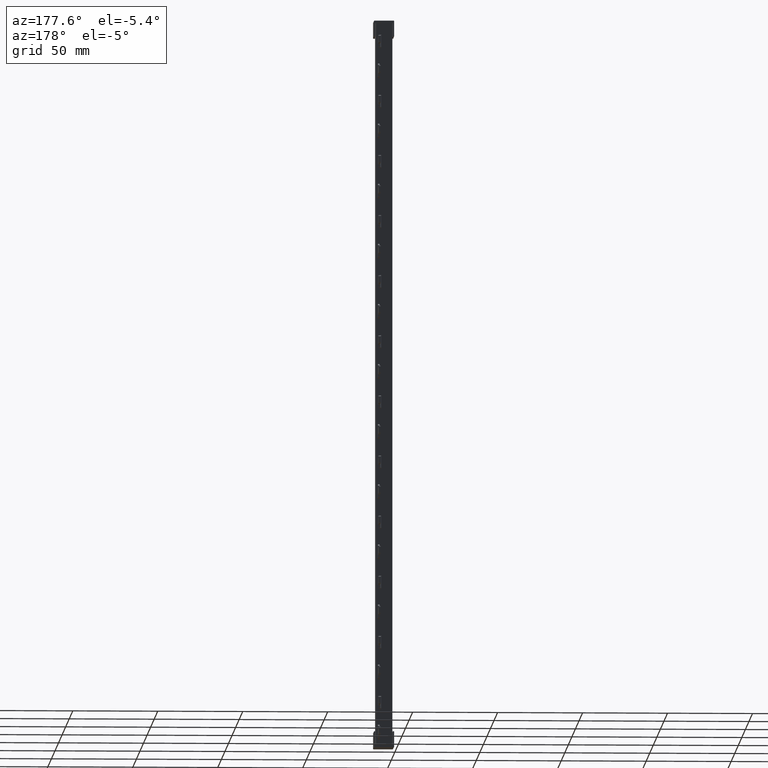
[diagram: clean part render]
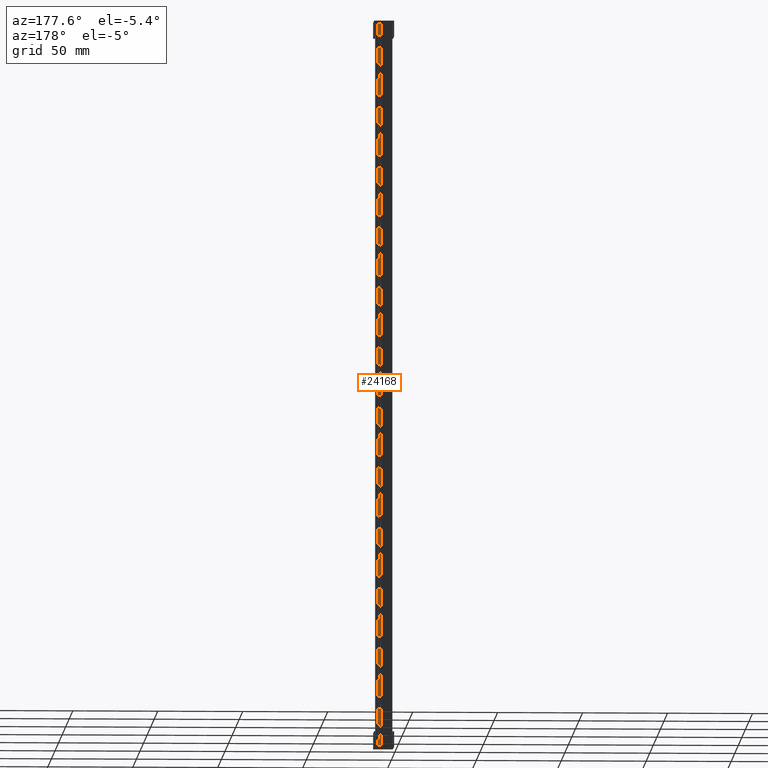
[diagram: same view with one face highlighted and labeled with its STEP entity id]
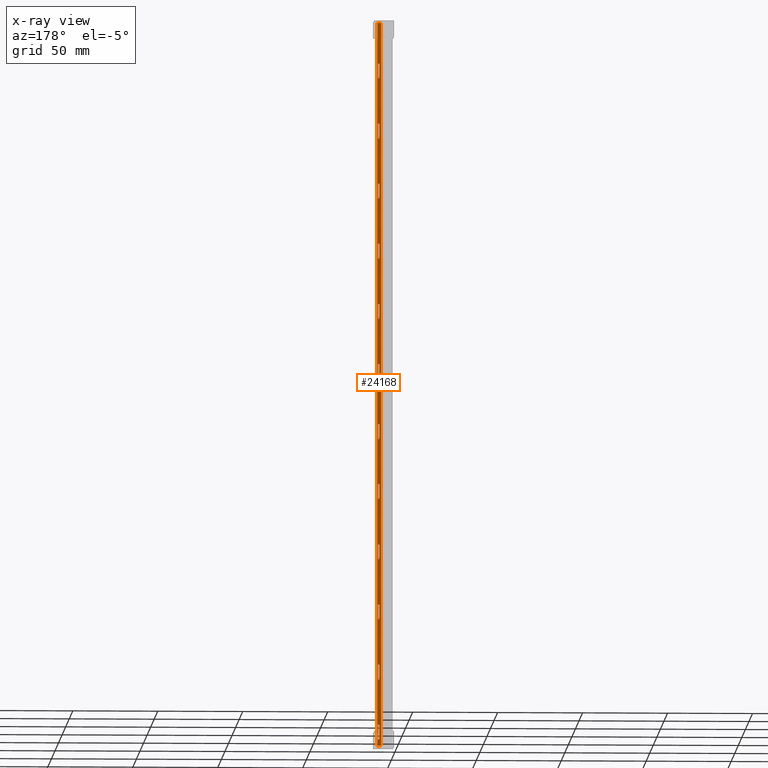
[diagram: x-ray of the same camera — body ghosted, the highlighted face saturated]
A machine part, auxiliary view. The second image highlights one B-rep face of the part: STEP entity #24168.
The next image is the same camera in x-ray: the body ghosted, the highlighted face saturated — about 0% of this face is hidden behind the body in this view.
In plain terms, the highlighted planar face has unit normal (0, 1, 0).
Its self-contained STEP definition (entity closure, byte-faithful):
#7 = VECTOR ( 'NONE', #18046, 1000.000000000000000 ) ;
#15 = VECTOR ( 'NONE', #35799, 1000.000000000000000 ) ;
#16 = VECTOR ( 'NONE', #17997, 1000.000000000000000 ) ;
#20 = VECTOR ( 'NONE', #35788, 1000.000000000000000 ) ;
#32 = VECTOR ( 'NONE', #18064, 1000.000000000000000 ) ;
#38 = VECTOR ( 'NONE', #35753, 1000.000000000000000 ) ;
#41 = VECTOR ( 'NONE', #35776, 1000.000000000000000 ) ;
#42 = VECTOR ( 'NONE', #35782, 1000.000000000000000 ) ;
#44 = VECTOR ( 'NONE', #35795, 1000.000000000000000 ) ;
#45 = VECTOR ( 'NONE', #34684, 1000.000000000000000 ) ;
#47 = VECTOR ( 'NONE', #18080, 1000.000000000000000 ) ;
#373 = VECTOR ( 'NONE', #20136, 1000.000000000000000 ) ;
#404 = VECTOR ( 'NONE', #20307, 1000.000000000000000 ) ;
#414 = VECTOR ( 'NONE', #20303, 1000.000000000000000 ) ;
#416 = VECTOR ( 'NONE', #20234, 1000.000000000000000 ) ;
#6630 = AXIS2_PLACEMENT_3D ( 'NONE', #26979, #26986, #26975 ) ;
#9124 = EDGE_CURVE ( 'NONE', #22872, #23098, #35265, .T. ) ;
#9128 = EDGE_CURVE ( 'NONE', #22906, #22902, #35264, .T. ) ;
#9133 = EDGE_CURVE ( 'NONE', #22938, #22883, #35297, .T. ) ;
#9138 = EDGE_CURVE ( 'NONE', #22874, #22902, #35306, .T. ) ;
#9144 = EDGE_CURVE ( 'NONE', #22938, #23098, #35366, .T. ) ;
#9148 = EDGE_CURVE ( 'NONE', #22925, #22948, #35364, .T. ) ;
#9150 = EDGE_CURVE ( 'NONE', #22883, #22872, #35371, .T. ) ;
#9152 = EDGE_CURVE ( 'NONE', #22927, #22866, #35353, .T. ) ;
#9162 = EDGE_CURVE ( 'NONE', #22927, #22925, #35489, .T. ) ;
#9166 = EDGE_CURVE ( 'NONE', #22874, #22954, #35487, .T. ) ;
#9173 = EDGE_CURVE ( 'NONE', #22948, #22866, #35537, .T. ) ;
#9178 = EDGE_CURVE ( 'NONE', #22900, #22952, #35514, .T. ) ;
#9190 = EDGE_CURVE ( 'NONE', #22870, #22932, #35558, .T. ) ;
#9198 = EDGE_CURVE ( 'NONE', #22887, #23085, #35630, .T. ) ;
#9200 = EDGE_CURVE ( 'NONE', #23085, #22915, #35640, .T. ) ;
#9201 = EDGE_CURVE ( 'NONE', #22954, #22906, #35647, .T. ) ;
#9204 = EDGE_CURVE ( 'NONE', #22854, #22887, #35634, .T. ) ;
#9205 = EDGE_CURVE ( 'NONE', #22894, #22940, #35645, .T. ) ;
#9207 = EDGE_CURVE ( 'NONE', #22930, #22914, #35615, .T. ) ;
#9208 = EDGE_CURVE ( 'NONE', #22889, #22956, #35646, .T. ) ;
#9209 = EDGE_CURVE ( 'NONE', #22894, #22885, #35650, .T. ) ;
#9212 = EDGE_CURVE ( 'NONE', #23050, #22889, #35665, .T. ) ;
#9215 = EDGE_CURVE ( 'NONE', #22934, #22870, #35669, .T. ) ;
#9216 = EDGE_CURVE ( 'NONE', #22876, #22921, #35683, .T. ) ;
#9217 = EDGE_CURVE ( 'NONE', #22879, #22885, #35700, .T. ) ;
#9221 = EDGE_CURVE ( 'NONE', #22916, #22917, #35697, .T. ) ;
#9222 = EDGE_CURVE ( 'NONE', #22920, #23050, #35705, .T. ) ;
#9223 = EDGE_CURVE ( 'NONE', #22963, #22921, #35662, .T. ) ;
#9224 = EDGE_CURVE ( 'NONE', #22909, #22900, #35686, .T. ) ;
#9227 = EDGE_CURVE ( 'NONE', #22928, #22930, #35718, .T. ) ;
#9229 = EDGE_CURVE ( 'NONE', #22958, #22862, #35731, .T. ) ;
#9232 = EDGE_CURVE ( 'NONE', #22855, #22963, #35746, .T. ) ;
#9235 = EDGE_CURVE ( 'NONE', #22914, #22919, #35722, .T. ) ;
#9238 = EDGE_CURVE ( 'NONE', #22876, #22855, #35791, .T. ) ;
#9239 = EDGE_CURVE ( 'NONE', #22916, #22862, #35760, .T. ) ;
#9240 = EDGE_CURVE ( 'NONE', #22909, #22936, #35772, .T. ) ;
#9242 = EDGE_CURVE ( 'NONE', #22917, #22958, #35790, .T. ) ;
#9243 = EDGE_CURVE ( 'NONE', #22854, #22915, #35769, .T. ) ;
#9247 = EDGE_CURVE ( 'NONE', #22952, #22936, #35794, .T. ) ;
#9248 = EDGE_CURVE ( 'NONE', #22940, #22879, #35774, .T. ) ;
#9249 = EDGE_CURVE ( 'NONE', #22928, #22919, #35800, .T. ) ;
#9250 = EDGE_CURVE ( 'NONE', #22920, #22956, #35803, .T. ) ;
#9267 = EDGE_CURVE ( 'NONE', #22857, #22881, #35307, .T. ) ;
#9269 = EDGE_CURVE ( 'NONE', #22934, #22946, #18042, .T. ) ;
#9273 = EDGE_CURVE ( 'NONE', #22912, #23010, #18013, .T. ) ;
#9292 = EDGE_CURVE ( 'NONE', #22881, #22960, #18049, .T. ) ;
#9294 = EDGE_CURVE ( 'NONE', #22987, #22982, #18061, .T. ) ;
#9295 = EDGE_CURVE ( 'NONE', #22982, #22912, #18060, .T. ) ;
#14285 = EDGE_CURVE ( 'NONE', #22932, #22946, #20141, .T. ) ;
#14312 = EDGE_CURVE ( 'NONE', #22960, #22868, #20245, .T. ) ;
#14325 = EDGE_CURVE ( 'NONE', #23010, #22987, #20306, .T. ) ;
#14333 = EDGE_CURVE ( 'NONE', #22857, #22868, #20294, .T. ) ;
#17997 = DIRECTION ( 'NONE',  ( 0.0000000000000000000, 0.0000000000000000000, -1.000000000000000000 ) ) ;
#18001 = CARTESIAN_POINT ( 'NONE',  ( 8.699999999999708000, 10.49999999999994500, 219.0000000000000000 ) ) ;
#18013 = LINE ( 'NONE', #18001, #16 ) ;
#18026 = CARTESIAN_POINT ( 'NONE',  ( 7.849999999999690600, 10.49999999998808100, -205.2611533241213500 ) ) ;
#18033 = DIRECTION ( 'NONE',  ( -1.000000000000000000, 0.0000000000000000000, 0.0000000000000000000 ) ) ;
#18042 = LINE ( 'NONE', #18026, #41075 ) ;
#18046 = DIRECTION ( 'NONE',  ( -1.000000000000000000, 0.0000000000000000000, 0.0000000000000000000 ) ) ;
#18049 = LINE ( 'NONE', #18054, #7 ) ;
#18054 = CARTESIAN_POINT ( 'NONE',  ( 7.849999999999690600, 10.49999999998810400, -19.08887217166897100 ) ) ;
#18060 = LINE ( 'NONE', #18075, #32 ) ;
#18061 = LINE ( 'NONE', #18077, #47 ) ;
#18064 = DIRECTION ( 'NONE',  ( 1.000000000000000000, 0.0000000000000000000, -6.924738560343257600E-013 ) ) ;
#18075 = CARTESIAN_POINT ( 'NONE',  ( 8.900000000277932700, 10.49999999999994500, 217.7999999999938400 ) ) ;
#18077 = CARTESIAN_POINT ( 'NONE',  ( 6.499999999999950300, 10.49999999999994300, 219.0000000000000000 ) ) ;
#18080 = DIRECTION ( 'NONE',  ( 0.0000000000000000000, -0.0000000000000000000, 1.000000000000000000 ) ) ;
#20136 = DIRECTION ( 'NONE',  ( -0.0000000000000000000, 0.0000000000000000000, -1.000000000000000000 ) ) ;
#20141 = LINE ( 'NONE', #20170, #373 ) ;
#20170 = CARTESIAN_POINT ( 'NONE',  ( 7.349999999999690600, 10.49999999999994300, 219.0000000000000000 ) ) ;
#20234 = DIRECTION ( 'NONE',  ( -0.0000000000000000000, 0.0000000000000000000, -1.000000000000000000 ) ) ;
#20245 = LINE ( 'NONE', #20267, #416 ) ;
#20267 = CARTESIAN_POINT ( 'NONE',  ( 7.349999999999690600, 10.49999999999994300, 219.0000000000000000 ) ) ;
#20284 = CARTESIAN_POINT ( 'NONE',  ( 8.899999999980860100, 10.49999999999994500, -208.8000000000062100 ) ) ;
#20294 = LINE ( 'NONE', #20316, #414 ) ;
#20303 = DIRECTION ( 'NONE',  ( -1.000000000000000000, 0.0000000000000000000, 0.0000000000000000000 ) ) ;
#20306 = LINE ( 'NONE', #20284, #404 ) ;
#20307 = DIRECTION ( 'NONE',  ( -1.000000000000000000, 0.0000000000000000000, 6.924738560343257600E-013 ) ) ;
#20316 = CARTESIAN_POINT ( 'NONE',  ( 7.849999999999690600, 10.49999999998810600, -27.76115332412138400 ) ) ;
#20343 = CARTESIAN_POINT ( 'NONE',  ( 8.699999999999708000, 10.49999999999994500, -208.8000000000060700 ) ) ;
#21503 = CARTESIAN_POINT ( 'NONE',  ( 8.349999999999690600, 10.49999999999104400, 78.73884667587857700 ) ) ;
#21532 = CARTESIAN_POINT ( 'NONE',  ( 7.349999999999690600, 10.49999999999104700, -205.2611533241213500 ) ) ;
#21534 = CARTESIAN_POINT ( 'NONE',  ( 8.349999999999690600, 10.49999999999103800, 149.7388466758786200 ) ) ;
#21535 = CARTESIAN_POINT ( 'NONE',  ( 8.349999999999690600, 10.49999999999107600, -63.26115332412138100 ) ) ;
#21538 = CARTESIAN_POINT ( 'NONE',  ( 7.349999999999690600, 10.49999999999104400, 78.73884667587857700 ) ) ;
#21539 = CARTESIAN_POINT ( 'NONE',  ( 8.349999999999690600, 10.49999999998908800, -161.0888721716676200 ) ) ;
#21540 = CARTESIAN_POINT ( 'NONE',  ( 8.349999999999690600, 10.49999999998908800, -196.5888721716675900 ) ) ;
#21541 = CARTESIAN_POINT ( 'NONE',  ( 8.349999999999690600, 10.49999999999105400, 51.91112782833107500 ) ) ;
#21542 = CARTESIAN_POINT ( 'NONE',  ( 7.349999999999690600, 10.49999999998908800, -161.0888721716676200 ) ) ;
#21543 = CARTESIAN_POINT ( 'NONE',  ( 8.349999999999690600, 10.49999999999106800, -54.58887217166898200 ) ) ;
#21544 = CARTESIAN_POINT ( 'NONE',  ( 8.349999999999690600, 10.49999999999106500, -27.76115332412138100 ) ) ;
#21545 = CARTESIAN_POINT ( 'NONE',  ( 7.349999999999690600, 10.49999999999106100, 185.2388466758786200 ) ) ;
#21547 = CARTESIAN_POINT ( 'NONE',  ( 7.349999999999690600, 10.49999999999106500, -19.08887217166897100 ) ) ;
#21548 = CARTESIAN_POINT ( 'NONE',  ( 8.349999999999690600, 10.49999999999105800, 114.2388466758785900 ) ) ;
#21549 = CARTESIAN_POINT ( 'NONE',  ( 7.349999999999690600, 10.49999999999105800, 158.4111278283309900 ) ) ;
#21550 = CARTESIAN_POINT ( 'NONE',  ( 8.349999999999690600, 10.49999999999106100, 16.41112782833102200 ) ) ;
#21551 = CARTESIAN_POINT ( 'NONE',  ( 7.349999999999690600, 10.49999999999106100, 16.41112782833102200 ) ) ;
#21552 = CARTESIAN_POINT ( 'NONE',  ( 8.349999999999690600, 10.49999999998910400, -90.08887217166764600 ) ) ;
#21553 = CARTESIAN_POINT ( 'NONE',  ( 7.349999999999690600, 10.49999999998908800, -196.5888721716675900 ) ) ;
#21554 = CARTESIAN_POINT ( 'NONE',  ( 8.349999999999690600, 10.49999999999104700, -98.76115332412135200 ) ) ;
#21555 = CARTESIAN_POINT ( 'NONE',  ( 8.349999999999690600, 10.49999999999104700, -205.2611533241213500 ) ) ;
#21557 = CARTESIAN_POINT ( 'NONE',  ( 7.349999999999690600, 10.49999999999105400, 51.91112782833107500 ) ) ;
#21559 = CARTESIAN_POINT ( 'NONE',  ( 8.349999999999690600, 10.49999999999106800, 7.738846675878621200 ) ) ;
#21561 = CARTESIAN_POINT ( 'NONE',  ( 8.349999999999690600, 10.49999999999105400, -134.2611533241213500 ) ) ;
#21563 = CARTESIAN_POINT ( 'NONE',  ( 7.349999999999690600, 10.49999999999105400, 43.23884667587861200 ) ) ;
#21565 = CARTESIAN_POINT ( 'NONE',  ( 8.349999999999690600, 10.49999999999106500, -19.08887217166897100 ) ) ;
#21567 = CARTESIAN_POINT ( 'NONE',  ( 7.349999999999690600, 10.49999999999106800, -54.58887217166898200 ) ) ;
#21568 = CARTESIAN_POINT ( 'NONE',  ( 7.349999999999690600, 10.49999999999106000, 122.9111278283310500 ) ) ;
#21569 = CARTESIAN_POINT ( 'NONE',  ( 8.349999999999690600, 10.49999999999105400, -169.7611533241213800 ) ) ;
#21570 = CARTESIAN_POINT ( 'NONE',  ( 8.349999999999690600, 10.49999999999105800, 158.4111278283309900 ) ) ;
#21572 = CARTESIAN_POINT ( 'NONE',  ( 7.349999999999690600, 10.49999999999107600, -63.26115332412138100 ) ) ;
#21573 = CARTESIAN_POINT ( 'NONE',  ( 8.349999999999690600, 10.49999999998909800, -125.5888721716676200 ) ) ;
#21575 = CARTESIAN_POINT ( 'NONE',  ( 8.699999999999708000, 10.49999999999994500, 217.7999999999939600 ) ) ;
#21578 = CARTESIAN_POINT ( 'NONE',  ( 8.349999999999690600, 10.49999999999106100, 185.2388466758786200 ) ) ;
#21580 = CARTESIAN_POINT ( 'NONE',  ( 7.349999999999690600, 10.49999999999103800, 149.7388466758786200 ) ) ;
#21581 = CARTESIAN_POINT ( 'NONE',  ( 7.349999999999690600, 10.49999999999104700, -98.76115332412135200 ) ) ;
#21584 = CARTESIAN_POINT ( 'NONE',  ( 7.349999999999690600, 10.49999999999106500, -27.76115332412138100 ) ) ;
#21585 = CARTESIAN_POINT ( 'NONE',  ( 7.349999999999690600, 10.49999999999105400, -169.7611533241213800 ) ) ;
#21586 = CARTESIAN_POINT ( 'NONE',  ( 7.349999999999690600, 10.49999999999105100, 193.9111278283310200 ) ) ;
#21588 = CARTESIAN_POINT ( 'NONE',  ( 7.349999999999690600, 10.49999999999105400, -134.2611533241213500 ) ) ;
#21589 = CARTESIAN_POINT ( 'NONE',  ( 8.349999999999690600, 10.49999999999105400, 43.23884667587861200 ) ) ;
#21590 = CARTESIAN_POINT ( 'NONE',  ( 8.349999999999690600, 10.49999999999105800, 87.41112782833101800 ) ) ;
#21591 = CARTESIAN_POINT ( 'NONE',  ( 8.349999999999690600, 10.49999999999106000, 122.9111278283310500 ) ) ;
#21592 = CARTESIAN_POINT ( 'NONE',  ( 7.349999999999690600, 10.49999999998910400, -90.08887217166764600 ) ) ;
#21594 = CARTESIAN_POINT ( 'NONE',  ( 7.349999999999690600, 10.49999999999105800, 114.2388466758785900 ) ) ;
#21630 = CARTESIAN_POINT ( 'NONE',  ( 6.499999999999950300, 10.49999999999994500, -208.8000000000034200 ) ) ;
#21633 = CARTESIAN_POINT ( 'NONE',  ( 7.349999999999690600, 10.49999999998909800, -125.5888721716676200 ) ) ;
#21638 = CARTESIAN_POINT ( 'NONE',  ( 6.499999999999950300, 10.49999999999994500, 217.7999999999958900 ) ) ;
#21878 = CARTESIAN_POINT ( 'NONE',  ( 8.349999999999690600, 10.49999999999105100, 193.9111278283310200 ) ) ;
#22024 = CARTESIAN_POINT ( 'NONE',  ( 7.349999999999690600, 10.49999999999105800, 87.41112782833101800 ) ) ;
#22062 = CARTESIAN_POINT ( 'NONE',  ( 7.349999999999690600, 10.49999999999106800, 7.738846675878621200 ) ) ;
#22854 = VERTEX_POINT ( 'NONE', #21503 ) ;
#22855 = VERTEX_POINT ( 'NONE', #21573 ) ;
#22857 = VERTEX_POINT ( 'NONE', #21544 ) ;
#22862 = VERTEX_POINT ( 'NONE', #21563 ) ;
#22866 = VERTEX_POINT ( 'NONE', #21585 ) ;
#22868 = VERTEX_POINT ( 'NONE', #21584 ) ;
#22870 = VERTEX_POINT ( 'NONE', #21540 ) ;
#22872 = VERTEX_POINT ( 'NONE', #21551 ) ;
#22874 = VERTEX_POINT ( 'NONE', #21535 ) ;
#22876 = VERTEX_POINT ( 'NONE', #21561 ) ;
#22879 = VERTEX_POINT ( 'NONE', #21549 ) ;
#22881 = VERTEX_POINT ( 'NONE', #21565 ) ;
#22883 = VERTEX_POINT ( 'NONE', #21550 ) ;
#22885 = VERTEX_POINT ( 'NONE', #21580 ) ;
#22887 = VERTEX_POINT ( 'NONE', #21590 ) ;
#22889 = VERTEX_POINT ( 'NONE', #21586 ) ;
#22894 = VERTEX_POINT ( 'NONE', #21534 ) ;
#22900 = VERTEX_POINT ( 'NONE', #21552 ) ;
#22902 = VERTEX_POINT ( 'NONE', #21572 ) ;
#22906 = VERTEX_POINT ( 'NONE', #21567 ) ;
#22909 = VERTEX_POINT ( 'NONE', #21554 ) ;
#22912 = VERTEX_POINT ( 'NONE', #21575 ) ;
#22914 = VERTEX_POINT ( 'NONE', #21568 ) ;
#22915 = VERTEX_POINT ( 'NONE', #21538 ) ;
#22916 = VERTEX_POINT ( 'NONE', #21589 ) ;
#22917 = VERTEX_POINT ( 'NONE', #21541 ) ;
#22919 = VERTEX_POINT ( 'NONE', #21594 ) ;
#22920 = VERTEX_POINT ( 'NONE', #21578 ) ;
#22921 = VERTEX_POINT ( 'NONE', #21588 ) ;
#22925 = VERTEX_POINT ( 'NONE', #21539 ) ;
#22927 = VERTEX_POINT ( 'NONE', #21569 ) ;
#22928 = VERTEX_POINT ( 'NONE', #21548 ) ;
#22930 = VERTEX_POINT ( 'NONE', #21591 ) ;
#22932 = VERTEX_POINT ( 'NONE', #21553 ) ;
#22934 = VERTEX_POINT ( 'NONE', #21555 ) ;
#22936 = VERTEX_POINT ( 'NONE', #21581 ) ;
#22938 = VERTEX_POINT ( 'NONE', #21559 ) ;
#22940 = VERTEX_POINT ( 'NONE', #21570 ) ;
#22946 = VERTEX_POINT ( 'NONE', #21532 ) ;
#22948 = VERTEX_POINT ( 'NONE', #21542 ) ;
#22952 = VERTEX_POINT ( 'NONE', #21592 ) ;
#22954 = VERTEX_POINT ( 'NONE', #21543 ) ;
#22956 = VERTEX_POINT ( 'NONE', #21545 ) ;
#22958 = VERTEX_POINT ( 'NONE', #21557 ) ;
#22960 = VERTEX_POINT ( 'NONE', #21547 ) ;
#22963 = VERTEX_POINT ( 'NONE', #21633 ) ;
#22982 = VERTEX_POINT ( 'NONE', #21638 ) ;
#22987 = VERTEX_POINT ( 'NONE', #21630 ) ;
#23010 = VERTEX_POINT ( 'NONE', #20343 ) ;
#23050 = VERTEX_POINT ( 'NONE', #21878 ) ;
#23085 = VERTEX_POINT ( 'NONE', #22024 ) ;
#23098 = VERTEX_POINT ( 'NONE', #22062 ) ;
#24168 = ADVANCED_FACE ( 'NONE', ( #26952, #26982, #26958, #26977, #26968, #26980, #26960, #26997, #26985, #26974, #26988, #26954, #26955 ), #26990, .T. ) ;
#25184 = ORIENTED_EDGE ( 'NONE', *, *, #9227, .T. ) ;
#25229 = ORIENTED_EDGE ( 'NONE', *, *, #9209, .F. ) ;
#25234 = ORIENTED_EDGE ( 'NONE', *, *, #9138, .F. ) ;
#25242 = ORIENTED_EDGE ( 'NONE', *, *, #9201, .T. ) ;
#25245 = ORIENTED_EDGE ( 'NONE', *, *, #9150, .T. ) ;
#25249 = ORIENTED_EDGE ( 'NONE', *, *, #9162, .T. ) ;
#25251 = ORIENTED_EDGE ( 'NONE', *, *, #9205, .T. ) ;
#25253 = ORIENTED_EDGE ( 'NONE', *, *, #9243, .F. ) ;
#25256 = ORIENTED_EDGE ( 'NONE', *, *, #9148, .T. ) ;
#25259 = ORIENTED_EDGE ( 'NONE', *, *, #9133, .T. ) ;
#25261 = ORIENTED_EDGE ( 'NONE', *, *, #9240, .F. ) ;
#25268 = ORIENTED_EDGE ( 'NONE', *, *, #9207, .T. ) ;
#25270 = ORIENTED_EDGE ( 'NONE', *, *, #9166, .T. ) ;
#25271 = ORIENTED_EDGE ( 'NONE', *, *, #9249, .F. ) ;
#25272 = ORIENTED_EDGE ( 'NONE', *, *, #9247, .T. ) ;
#25273 = ORIENTED_EDGE ( 'NONE', *, *, #9224, .T. ) ;
#25274 = ORIENTED_EDGE ( 'NONE', *, *, #9128, .T. ) ;
#25286 = ORIENTED_EDGE ( 'NONE', *, *, #9273, .T. ) ;
#25287 = ORIENTED_EDGE ( 'NONE', *, *, #9178, .T. ) ;
#25288 = ORIENTED_EDGE ( 'NONE', *, *, #9124, .T. ) ;
#25290 = ORIENTED_EDGE ( 'NONE', *, *, #9144, .F. ) ;
#25293 = ORIENTED_EDGE ( 'NONE', *, *, #9152, .F. ) ;
#25295 = ORIENTED_EDGE ( 'NONE', *, *, #9295, .T. ) ;
#25296 = ORIENTED_EDGE ( 'NONE', *, *, #9217, .T. ) ;
#25297 = ORIENTED_EDGE ( 'NONE', *, *, #9198, .T. ) ;
#25301 = ORIENTED_EDGE ( 'NONE', *, *, #9200, .T. ) ;
#25303 = ORIENTED_EDGE ( 'NONE', *, *, #9235, .T. ) ;
#25312 = ORIENTED_EDGE ( 'NONE', *, *, #9269, .F. ) ;
#25313 = ORIENTED_EDGE ( 'NONE', *, *, #9292, .T. ) ;
#25316 = ORIENTED_EDGE ( 'NONE', *, *, #9250, .F. ) ;
#25318 = ORIENTED_EDGE ( 'NONE', *, *, #9204, .T. ) ;
#25322 = ORIENTED_EDGE ( 'NONE', *, *, #9208, .T. ) ;
#25324 = ORIENTED_EDGE ( 'NONE', *, *, #14312, .T. ) ;
#25325 = ORIENTED_EDGE ( 'NONE', *, *, #9267, .T. ) ;
#25327 = ORIENTED_EDGE ( 'NONE', *, *, #14325, .T. ) ;
#25328 = ORIENTED_EDGE ( 'NONE', *, *, #9238, .T. ) ;
#25332 = ORIENTED_EDGE ( 'NONE', *, *, #14333, .F. ) ;
#25333 = ORIENTED_EDGE ( 'NONE', *, *, #9239, .F. ) ;
#25343 = ORIENTED_EDGE ( 'NONE', *, *, #9294, .T. ) ;
#25344 = ORIENTED_EDGE ( 'NONE', *, *, #9215, .T. ) ;
#25346 = ORIENTED_EDGE ( 'NONE', *, *, #9216, .F. ) ;
#25348 = ORIENTED_EDGE ( 'NONE', *, *, #9248, .T. ) ;
#25351 = ORIENTED_EDGE ( 'NONE', *, *, #9212, .T. ) ;
#25354 = ORIENTED_EDGE ( 'NONE', *, *, #9173, .T. ) ;
#25357 = ORIENTED_EDGE ( 'NONE', *, *, #9229, .T. ) ;
#25358 = ORIENTED_EDGE ( 'NONE', *, *, #9232, .T. ) ;
#25360 = ORIENTED_EDGE ( 'NONE', *, *, #9190, .T. ) ;
#25361 = ORIENTED_EDGE ( 'NONE', *, *, #9223, .T. ) ;
#25365 = ORIENTED_EDGE ( 'NONE', *, *, #9242, .T. ) ;
#25366 = ORIENTED_EDGE ( 'NONE', *, *, #14285, .T. ) ;
#25370 = ORIENTED_EDGE ( 'NONE', *, *, #9222, .T. ) ;
#25374 = ORIENTED_EDGE ( 'NONE', *, *, #9221, .T. ) ;
#26952 = FACE_OUTER_BOUND ( 'NONE', #33616, .T. ) ;
#26954 = FACE_BOUND ( 'NONE', #33844, .T. ) ;
#26955 = FACE_BOUND ( 'NONE', #33745, .T. ) ;
#26958 = FACE_BOUND ( 'NONE', #33681, .T. ) ;
#26960 = FACE_BOUND ( 'NONE', #33579, .T. ) ;
#26968 = FACE_BOUND ( 'NONE', #33571, .T. ) ;
#26974 = FACE_BOUND ( 'NONE', #33690, .T. ) ;
#26975 = DIRECTION ( 'NONE',  ( 0.0000000000000000000, -0.0000000000000000000, 1.000000000000000000 ) ) ;
#26977 = FACE_BOUND ( 'NONE', #33612, .T. ) ;
#26979 = CARTESIAN_POINT ( 'NONE',  ( 6.099999999999830900, 10.49999999999994300, 219.0000000000000000 ) ) ;
#26980 = FACE_BOUND ( 'NONE', #33642, .T. ) ;
#26982 = FACE_BOUND ( 'NONE', #33727, .T. ) ;
#26985 = FACE_BOUND ( 'NONE', #33789, .T. ) ;
#26986 = DIRECTION ( 'NONE',  ( 0.0000000000000000000, 1.000000000000000000, 0.0000000000000000000 ) ) ;
#26988 = FACE_BOUND ( 'NONE', #33842, .T. ) ;
#26990 = PLANE ( 'NONE',  #6630 ) ;
#26997 = FACE_BOUND ( 'NONE', #33692, .T. ) ;
#33571 = EDGE_LOOP ( 'NONE', ( #25272, #25261, #25273, #25287 ) ) ;
#33579 = EDGE_LOOP ( 'NONE', ( #25268, #25303, #25271, #25184 ) ) ;
#33612 = EDGE_LOOP ( 'NONE', ( #25354, #25293, #25249, #25256 ) ) ;
#33616 = EDGE_LOOP ( 'NONE', ( #25286, #25327, #25343, #25295 ) ) ;
#33642 = EDGE_LOOP ( 'NONE', ( #25348, #25296, #25229, #25251 ) ) ;
#33681 = EDGE_LOOP ( 'NONE', ( #25234, #25270, #25242, #25274 ) ) ;
#33690 = EDGE_LOOP ( 'NONE', ( #25351, #25322, #25316, #25370 ) ) ;
#33692 = EDGE_LOOP ( 'NONE', ( #25297, #25301, #25253, #25318 ) ) ;
#33727 = EDGE_LOOP ( 'NONE', ( #25290, #25259, #25245, #25288 ) ) ;
#33745 = EDGE_LOOP ( 'NONE', ( #25332, #25325, #25313, #25324 ) ) ;
#33789 = EDGE_LOOP ( 'NONE', ( #25365, #25357, #25333, #25374 ) ) ;
#33842 = EDGE_LOOP ( 'NONE', ( #25361, #25346, #25328, #25358 ) ) ;
#33844 = EDGE_LOOP ( 'NONE', ( #25366, #25312, #25344, #25360 ) ) ;
#34684 = DIRECTION ( 'NONE',  ( -1.000000000000000000, 0.0000000000000000000, 0.0000000000000000000 ) ) ;
#35236 = CARTESIAN_POINT ( 'NONE',  ( 7.349999999999690600, 10.49999999999994300, 219.0000000000000000 ) ) ;
#35245 = DIRECTION ( 'NONE',  ( -0.0000000000000000000, 0.0000000000000000000, -1.000000000000000000 ) ) ;
#35264 = LINE ( 'NONE', #35236, #41011 ) ;
#35265 = LINE ( 'NONE', #35270, #41069 ) ;
#35270 = CARTESIAN_POINT ( 'NONE',  ( 7.349999999999690600, 10.49999999999994300, 219.0000000000000000 ) ) ;
#35273 = DIRECTION ( 'NONE',  ( -0.0000000000000000000, 0.0000000000000000000, -1.000000000000000000 ) ) ;
#35297 = LINE ( 'NONE', #35312, #41062 ) ;
#35298 = DIRECTION ( 'NONE',  ( 0.0000000000000000000, -0.0000000000000000000, 1.000000000000000000 ) ) ;
#35306 = LINE ( 'NONE', #35309, #41020 ) ;
#35307 = LINE ( 'NONE', #35657, #41074 ) ;
#35309 = CARTESIAN_POINT ( 'NONE',  ( 7.849999999999690600, 10.49999999998811800, -63.26115332412136600 ) ) ;
#35310 = DIRECTION ( 'NONE',  ( -1.000000000000000000, 0.0000000000000000000, 0.0000000000000000000 ) ) ;
#35312 = CARTESIAN_POINT ( 'NONE',  ( 8.349999999999690600, 10.49999999999994300, 219.0000000000000000 ) ) ;
#35350 = CARTESIAN_POINT ( 'NONE',  ( 7.849999999999690600, 10.49999999998810900, 7.738846675878620300 ) ) ;
#35351 = DIRECTION ( 'NONE',  ( -1.000000000000000000, 0.0000000000000000000, 0.0000000000000000000 ) ) ;
#35353 = LINE ( 'NONE', #35427, #41022 ) ;
#35358 = CARTESIAN_POINT ( 'NONE',  ( 7.849999999999690600, 10.49999999998547100, -161.0888721716676200 ) ) ;
#35364 = LINE ( 'NONE', #35358, #41045 ) ;
#35366 = LINE ( 'NONE', #35350, #41025 ) ;
#35371 = LINE ( 'NONE', #35393, #41061 ) ;
#35377 = DIRECTION ( 'NONE',  ( -1.000000000000000000, 0.0000000000000000000, 0.0000000000000000000 ) ) ;
#35382 = DIRECTION ( 'NONE',  ( -1.000000000000000000, 0.0000000000000000000, 0.0000000000000000000 ) ) ;
#35393 = CARTESIAN_POINT ( 'NONE',  ( 7.849999999999690600, 10.49999999998810200, 16.41112782833102600 ) ) ;
#35427 = CARTESIAN_POINT ( 'NONE',  ( 7.849999999999690600, 10.49999999998809100, -169.7611533241213800 ) ) ;
#35441 = DIRECTION ( 'NONE',  ( -1.000000000000000000, 0.0000000000000000000, 0.0000000000000000000 ) ) ;
#35463 = DIRECTION ( 'NONE',  ( 0.0000000000000000000, -0.0000000000000000000, 1.000000000000000000 ) ) ;
#35465 = CARTESIAN_POINT ( 'NONE',  ( 8.349999999999690600, 10.49999999999994300, 219.0000000000000000 ) ) ;
#35472 = CARTESIAN_POINT ( 'NONE',  ( 8.349999999999690600, 10.49999999999994300, 219.0000000000000000 ) ) ;
#35486 = DIRECTION ( 'NONE',  ( 0.0000000000000000000, -0.0000000000000000000, 1.000000000000000000 ) ) ;
#35487 = LINE ( 'NONE', #35465, #41008 ) ;
#35489 = LINE ( 'NONE', #35472, #41010 ) ;
#35514 = LINE ( 'NONE', #35550, #41065 ) ;
#35521 = CARTESIAN_POINT ( 'NONE',  ( 7.349999999999690600, 10.49999999999994300, 219.0000000000000000 ) ) ;
#35532 = DIRECTION ( 'NONE',  ( -0.0000000000000000000, 0.0000000000000000000, -1.000000000000000000 ) ) ;
#35533 = DIRECTION ( 'NONE',  ( -1.000000000000000000, 0.0000000000000000000, 0.0000000000000000000 ) ) ;
#35537 = LINE ( 'NONE', #35521, #41036 ) ;
#35550 = CARTESIAN_POINT ( 'NONE',  ( 7.849999999999690600, 10.49999999998548900, -90.08887217166764600 ) ) ;
#35558 = LINE ( 'NONE', #35577, #41052 ) ;
#35577 = CARTESIAN_POINT ( 'NONE',  ( 7.849999999999690600, 10.49999999998547100, -196.5888721716675900 ) ) ;
#35606 = DIRECTION ( 'NONE',  ( -1.000000000000000000, 0.0000000000000000000, 0.0000000000000000000 ) ) ;
#35608 = CARTESIAN_POINT ( 'NONE',  ( 8.349999999999690600, 10.49999999999994300, 219.0000000000000000 ) ) ;
#35609 = CARTESIAN_POINT ( 'NONE',  ( 7.849999999999690600, 10.49999999998809500, 87.41112782833101800 ) ) ;
#35611 = DIRECTION ( 'NONE',  ( -0.0000000000000000000, 0.0000000000000000000, -1.000000000000000000 ) ) ;
#35612 = CARTESIAN_POINT ( 'NONE',  ( 8.349999999999690600, 10.49999999999994300, 219.0000000000000000 ) ) ;
#35614 = DIRECTION ( 'NONE',  ( 0.0000000000000000000, -0.0000000000000000000, 1.000000000000000000 ) ) ;
#35615 = LINE ( 'NONE', #35628, #41016 ) ;
#35622 = DIRECTION ( 'NONE',  ( -1.000000000000000000, 0.0000000000000000000, 0.0000000000000000000 ) ) ;
#35626 = DIRECTION ( 'NONE',  ( 0.0000000000000000000, -0.0000000000000000000, 1.000000000000000000 ) ) ;
#35627 = CARTESIAN_POINT ( 'NONE',  ( 7.349999999999690600, 10.49999999999994300, 219.0000000000000000 ) ) ;
#35628 = CARTESIAN_POINT ( 'NONE',  ( 7.849999999999690600, 10.49999999998809800, 122.9111278283310500 ) ) ;
#35630 = LINE ( 'NONE', #35609, #41014 ) ;
#35631 = DIRECTION ( 'NONE',  ( -0.0000000000000000000, 0.0000000000000000000, -1.000000000000000000 ) ) ;
#35632 = CARTESIAN_POINT ( 'NONE',  ( 7.849999999999690600, 10.49999999998811100, -54.58887217166898200 ) ) ;
#35634 = LINE ( 'NONE', #35608, #41041 ) ;
#35639 = DIRECTION ( 'NONE',  ( -1.000000000000000000, 0.0000000000000000000, 0.0000000000000000000 ) ) ;
#35640 = LINE ( 'NONE', #35627, #41039 ) ;
#35642 = DIRECTION ( 'NONE',  ( 0.0000000000000000000, -0.0000000000000000000, 1.000000000000000000 ) ) ;
#35643 = DIRECTION ( 'NONE',  ( -1.000000000000000000, 0.0000000000000000000, 0.0000000000000000000 ) ) ;
#35645 = LINE ( 'NONE', #35612, #41026 ) ;
#35646 = LINE ( 'NONE', #35648, #41027 ) ;
#35647 = LINE ( 'NONE', #35632, #41017 ) ;
#35648 = CARTESIAN_POINT ( 'NONE',  ( 7.349999999999690600, 10.49999999999994300, 219.0000000000000000 ) ) ;
#35650 = LINE ( 'NONE', #35656, #41066 ) ;
#35656 = CARTESIAN_POINT ( 'NONE',  ( 7.849999999999690600, 10.49999999998807200, 149.7388466758786200 ) ) ;
#35657 = CARTESIAN_POINT ( 'NONE',  ( 8.349999999999690600, 10.49999999999994300, 219.0000000000000000 ) ) ;
#35662 = LINE ( 'NONE', #35744, #41006 ) ;
#35663 = CARTESIAN_POINT ( 'NONE',  ( 8.349999999999690600, 10.49999999999994300, 219.0000000000000000 ) ) ;
#35665 = LINE ( 'NONE', #35684, #41029 ) ;
#35666 = DIRECTION ( 'NONE',  ( -1.000000000000000000, 0.0000000000000000000, 0.0000000000000000000 ) ) ;
#35669 = LINE ( 'NONE', #35673, #41058 ) ;
#35671 = DIRECTION ( 'NONE',  ( -0.0000000000000000000, 0.0000000000000000000, -1.000000000000000000 ) ) ;
#35673 = CARTESIAN_POINT ( 'NONE',  ( 8.349999999999690600, 10.49999999999994300, 219.0000000000000000 ) ) ;
#35682 = DIRECTION ( 'NONE',  ( -1.000000000000000000, 0.0000000000000000000, 0.0000000000000000000 ) ) ;
#35683 = LINE ( 'NONE', #35701, #41063 ) ;
#35684 = CARTESIAN_POINT ( 'NONE',  ( 7.849999999999690600, 10.49999999998808800, 193.9111278283310200 ) ) ;
#35686 = LINE ( 'NONE', #35727, #41042 ) ;
#35688 = CARTESIAN_POINT ( 'NONE',  ( 7.349999999999690600, 10.49999999999994300, 219.0000000000000000 ) ) ;
#35693 = DIRECTION ( 'NONE',  ( 0.0000000000000000000, -0.0000000000000000000, 1.000000000000000000 ) ) ;
#35694 = DIRECTION ( 'NONE',  ( -1.000000000000000000, 0.0000000000000000000, 0.0000000000000000000 ) ) ;
#35697 = LINE ( 'NONE', #35703, #41031 ) ;
#35700 = LINE ( 'NONE', #35688, #41067 ) ;
#35701 = CARTESIAN_POINT ( 'NONE',  ( 7.849999999999690600, 10.49999999998809100, -134.2611533241213500 ) ) ;
#35703 = CARTESIAN_POINT ( 'NONE',  ( 8.349999999999690600, 10.49999999999994300, 219.0000000000000000 ) ) ;
#35704 = DIRECTION ( 'NONE',  ( 0.0000000000000000000, -0.0000000000000000000, 1.000000000000000000 ) ) ;
#35705 = LINE ( 'NONE', #35663, #41028 ) ;
#35706 = DIRECTION ( 'NONE',  ( 0.0000000000000000000, -0.0000000000000000000, 1.000000000000000000 ) ) ;
#35710 = CARTESIAN_POINT ( 'NONE',  ( 7.849999999999690600, 10.49999999998548400, -125.5888721716676200 ) ) ;
#35711 = CARTESIAN_POINT ( 'NONE',  ( 8.349999999999690600, 10.49999999999994300, 219.0000000000000000 ) ) ;
#35718 = LINE ( 'NONE', #35711, #41032 ) ;
#35720 = DIRECTION ( 'NONE',  ( 0.0000000000000000000, -0.0000000000000000000, 1.000000000000000000 ) ) ;
#35722 = LINE ( 'NONE', #35751, #38 ) ;
#35727 = CARTESIAN_POINT ( 'NONE',  ( 8.349999999999690600, 10.49999999999994300, 219.0000000000000000 ) ) ;
#35731 = LINE ( 'NONE', #35732, #41047 ) ;
#35732 = CARTESIAN_POINT ( 'NONE',  ( 7.349999999999690600, 10.49999999999994300, 219.0000000000000000 ) ) ;
#35734 = DIRECTION ( 'NONE',  ( 0.0000000000000000000, -0.0000000000000000000, 1.000000000000000000 ) ) ;
#35735 = DIRECTION ( 'NONE',  ( -0.0000000000000000000, 0.0000000000000000000, -1.000000000000000000 ) ) ;
#35739 = DIRECTION ( 'NONE',  ( -0.0000000000000000000, 0.0000000000000000000, -1.000000000000000000 ) ) ;
#35744 = CARTESIAN_POINT ( 'NONE',  ( 7.349999999999690600, 10.49999999999994300, 219.0000000000000000 ) ) ;
#35746 = LINE ( 'NONE', #35710, #41053 ) ;
#35748 = DIRECTION ( 'NONE',  ( -1.000000000000000000, 0.0000000000000000000, 0.0000000000000000000 ) ) ;
#35751 = CARTESIAN_POINT ( 'NONE',  ( 7.349999999999690600, 10.49999999999994300, 219.0000000000000000 ) ) ;
#35753 = DIRECTION ( 'NONE',  ( -0.0000000000000000000, 0.0000000000000000000, -1.000000000000000000 ) ) ;
#35757 = CARTESIAN_POINT ( 'NONE',  ( 7.849999999999690600, 10.49999999998810200, 185.2388466758786200 ) ) ;
#35760 = LINE ( 'NONE', #35765, #44 ) ;
#35762 = CARTESIAN_POINT ( 'NONE',  ( 8.349999999999690600, 10.49999999999994300, 219.0000000000000000 ) ) ;
#35765 = CARTESIAN_POINT ( 'NONE',  ( 7.849999999999690600, 10.49999999998809300, 43.23884667587861200 ) ) ;
#35769 = LINE ( 'NONE', #35770, #42 ) ;
#35770 = CARTESIAN_POINT ( 'NONE',  ( 7.849999999999690600, 10.49999999998807900, 78.73884667587859100 ) ) ;
#35772 = LINE ( 'NONE', #35796, #20 ) ;
#35774 = LINE ( 'NONE', #35775, #15 ) ;
#35775 = CARTESIAN_POINT ( 'NONE',  ( 7.849999999999690600, 10.49999999998809500, 158.4111278283309900 ) ) ;
#35776 = DIRECTION ( 'NONE',  ( 0.0000000000000000000, -0.0000000000000000000, 1.000000000000000000 ) ) ;
#35779 = DIRECTION ( 'NONE',  ( -1.000000000000000000, 0.0000000000000000000, 0.0000000000000000000 ) ) ;
#35782 = DIRECTION ( 'NONE',  ( -1.000000000000000000, 0.0000000000000000000, 0.0000000000000000000 ) ) ;
#35785 = DIRECTION ( 'NONE',  ( -0.0000000000000000000, 0.0000000000000000000, -1.000000000000000000 ) ) ;
#35788 = DIRECTION ( 'NONE',  ( -1.000000000000000000, 0.0000000000000000000, 0.0000000000000000000 ) ) ;
#35790 = LINE ( 'NONE', #35792, #41007 ) ;
#35791 = LINE ( 'NONE', #35762, #41 ) ;
#35792 = CARTESIAN_POINT ( 'NONE',  ( 7.849999999999690600, 10.49999999998809100, 51.91112782833106800 ) ) ;
#35794 = LINE ( 'NONE', #35797, #41068 ) ;
#35795 = DIRECTION ( 'NONE',  ( -1.000000000000000000, 0.0000000000000000000, 0.0000000000000000000 ) ) ;
#35796 = CARTESIAN_POINT ( 'NONE',  ( 7.849999999999690600, 10.49999999998808200, -98.76115332412136600 ) ) ;
#35797 = CARTESIAN_POINT ( 'NONE',  ( 7.349999999999690600, 10.49999999999994300, 219.0000000000000000 ) ) ;
#35799 = DIRECTION ( 'NONE',  ( -1.000000000000000000, 0.0000000000000000000, 0.0000000000000000000 ) ) ;
#35800 = LINE ( 'NONE', #35801, #41079 ) ;
#35801 = CARTESIAN_POINT ( 'NONE',  ( 7.849999999999690600, 10.49999999998809500, 114.2388466758785900 ) ) ;
#35802 = DIRECTION ( 'NONE',  ( -1.000000000000000000, 0.0000000000000000000, 0.0000000000000000000 ) ) ;
#35803 = LINE ( 'NONE', #35757, #45 ) ;
#41006 = VECTOR ( 'NONE', #35739, 1000.000000000000000 ) ;
#41007 = VECTOR ( 'NONE', #35779, 1000.000000000000000 ) ;
#41008 = VECTOR ( 'NONE', #35486, 1000.000000000000000 ) ;
#41010 = VECTOR ( 'NONE', #35463, 1000.000000000000000 ) ;
#41011 = VECTOR ( 'NONE', #35273, 1000.000000000000000 ) ;
#41014 = VECTOR ( 'NONE', #35639, 1000.000000000000000 ) ;
#41016 = VECTOR ( 'NONE', #35643, 1000.000000000000000 ) ;
#41017 = VECTOR ( 'NONE', #35622, 1000.000000000000000 ) ;
#41020 = VECTOR ( 'NONE', #35310, 1000.000000000000000 ) ;
#41022 = VECTOR ( 'NONE', #35441, 1000.000000000000000 ) ;
#41025 = VECTOR ( 'NONE', #35351, 1000.000000000000000 ) ;
#41026 = VECTOR ( 'NONE', #35614, 1000.000000000000000 ) ;
#41027 = VECTOR ( 'NONE', #35611, 1000.000000000000000 ) ;
#41028 = VECTOR ( 'NONE', #35706, 1000.000000000000000 ) ;
#41029 = VECTOR ( 'NONE', #35682, 1000.000000000000000 ) ;
#41031 = VECTOR ( 'NONE', #35704, 1000.000000000000000 ) ;
#41032 = VECTOR ( 'NONE', #35720, 1000.000000000000000 ) ;
#41036 = VECTOR ( 'NONE', #35532, 1000.000000000000000 ) ;
#41039 = VECTOR ( 'NONE', #35631, 1000.000000000000000 ) ;
#41041 = VECTOR ( 'NONE', #35642, 1000.000000000000000 ) ;
#41042 = VECTOR ( 'NONE', #35734, 1000.000000000000000 ) ;
#41045 = VECTOR ( 'NONE', #35377, 1000.000000000000000 ) ;
#41047 = VECTOR ( 'NONE', #35735, 1000.000000000000000 ) ;
#41052 = VECTOR ( 'NONE', #35606, 1000.000000000000000 ) ;
#41053 = VECTOR ( 'NONE', #35748, 1000.000000000000000 ) ;
#41058 = VECTOR ( 'NONE', #35693, 1000.000000000000000 ) ;
#41061 = VECTOR ( 'NONE', #35382, 1000.000000000000000 ) ;
#41062 = VECTOR ( 'NONE', #35298, 1000.000000000000000 ) ;
#41063 = VECTOR ( 'NONE', #35694, 1000.000000000000000 ) ;
#41065 = VECTOR ( 'NONE', #35533, 1000.000000000000000 ) ;
#41066 = VECTOR ( 'NONE', #35666, 1000.000000000000000 ) ;
#41067 = VECTOR ( 'NONE', #35671, 1000.000000000000000 ) ;
#41068 = VECTOR ( 'NONE', #35785, 1000.000000000000000 ) ;
#41069 = VECTOR ( 'NONE', #35245, 1000.000000000000000 ) ;
#41074 = VECTOR ( 'NONE', #35626, 1000.000000000000000 ) ;
#41075 = VECTOR ( 'NONE', #18033, 1000.000000000000000 ) ;
#41079 = VECTOR ( 'NONE', #35802, 1000.000000000000000 ) ;